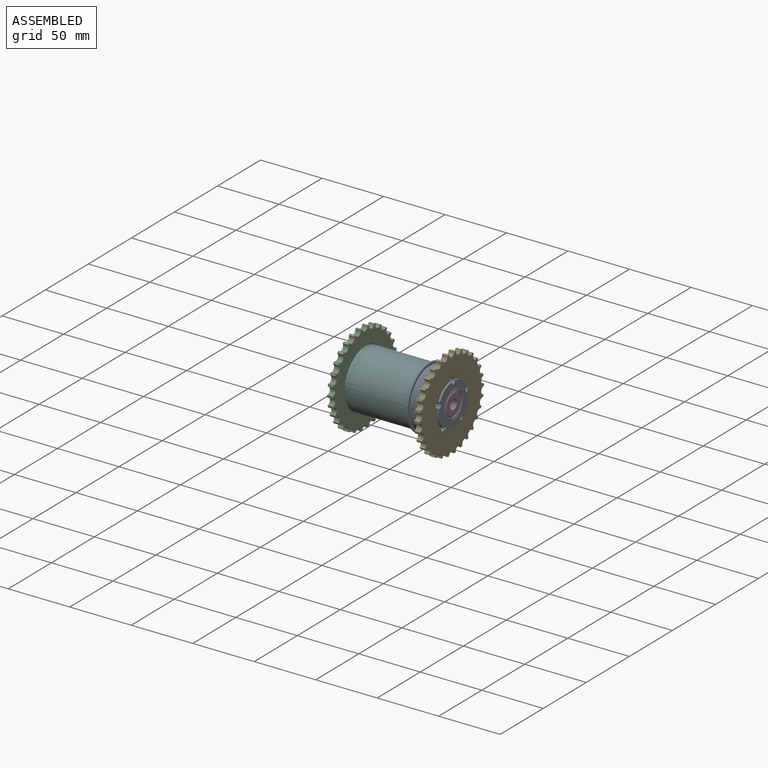
[diagram: assembled view]
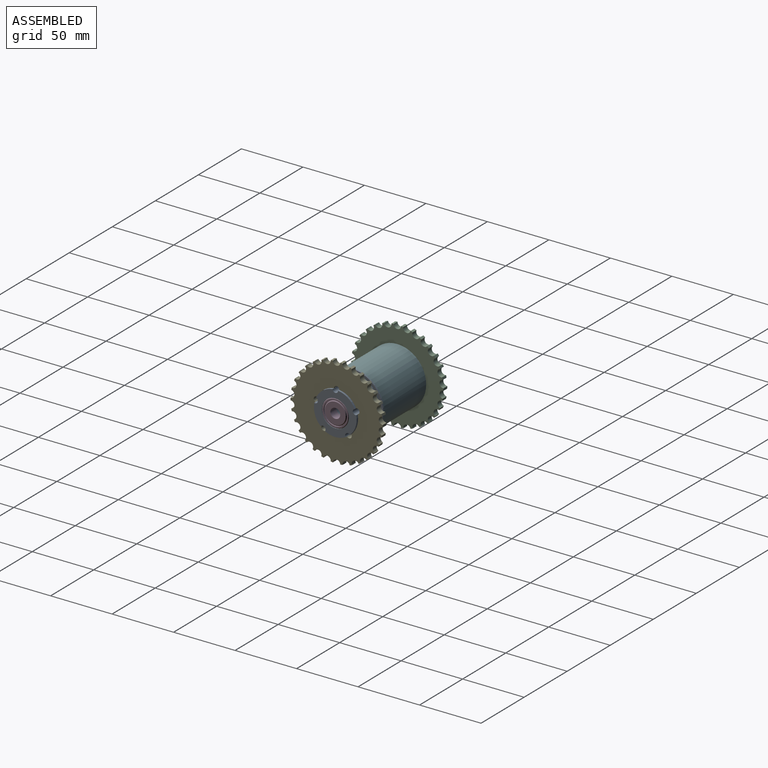
[diagram: assembled view, second angle]
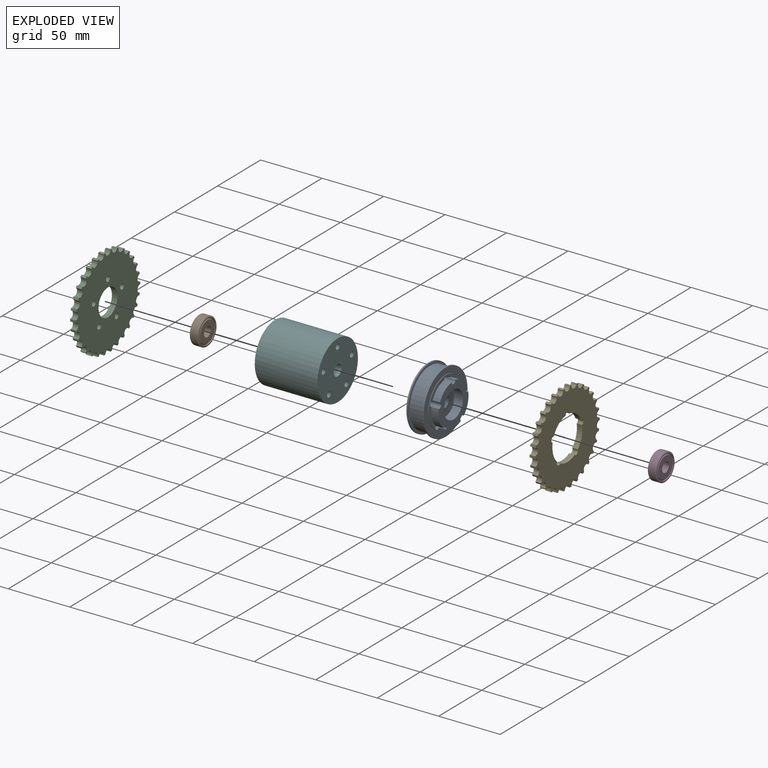
[diagram: exploded view]
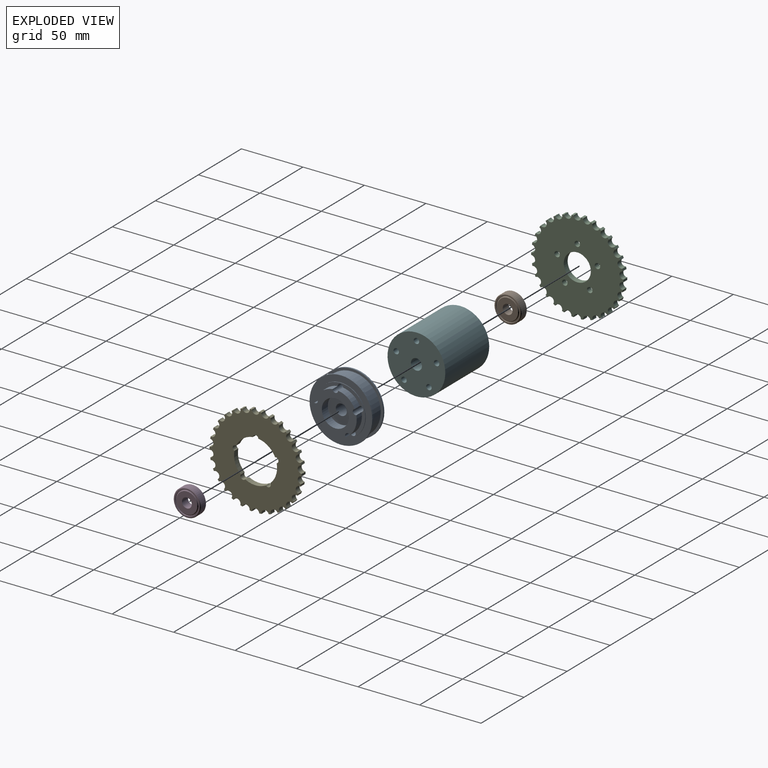
[diagram: exploded view, second angle]
ASSEMBLY  parts=6 mates=5
PART A: 25 faces, bbox 21x51x51 mm
  f0: cylinder r=17.4mm len=13.54mm, axis (-1,0,0), area 104.7mm2, adj f7,f9,f20,f24
  f1: cylinder r=17.4mm len=15.91mm, axis (-1,0,0), area 104.7mm2, adj f7,f9,f23,f24
  f2: cylinder r=17.4mm len=16.73mm, axis (-1,0,0), area 104.7mm2, adj f7,f9,f22,f23
  f3: cylinder r=17.4mm len=15.91mm, axis (-1,0,0), area 104.7mm2, adj f7,f9,f21,f22
  f4: cylinder r=17.4mm len=13.54mm, axis (-1,0,0), area 104.7mm2, adj f7,f9,f20,f21
  f5: plane 40.34x40.34mm, normal (-1,0,0), area 1138.4mm2, adj f13,f18,f20,f21,f22,f23,f24
  f6: cylinder r=25.5mm len=51mm, axis (-1,0,0), area 200.3mm2, adj f12,f19
  f7: plane 40.34x40.34mm, normal (1,0,0), area 291.2mm2, adj f0,f1,f2,f3,f4,f16,f20,f21
  f8: cylinder r=25.5mm len=51mm, axis (-1,0,0), area 200.3mm2, adj f10,f17
  f9: plane 34.8x34.66mm, normal (1,0,0), area 530.7mm2, adj f0,f1,f2,f3,f4,f15,f20,f21
  f10: plane 51x51mm, normal (-1,0,0), area 307.9mm2, adj f8,f11
  f11: cylinder r=23.5mm len=47mm, axis (-1,0,0), area 1698mm2, adj f10,f12
  f12: plane 51x51mm, normal (1,0,0), area 307.9mm2, adj f6,f11
  f13: cylinder r=4.5mm len=14mm, axis (-1,0,0), area 395.8mm2, adj f5,f14
  f14: plane 22x22mm, normal (1,0,0), area 316.5mm2, adj f13,f15
  f15: cylinder r=11mm len=22mm, axis (-1,0,0), area 483.8mm2, adj f9,f14
  f16: cylinder r=20.17mm len=40.34mm, axis (1,0,0), area 63.4mm2, adj f7,f17
  f17: plane 51x51mm, normal (1,0,0), area 764.7mm2, adj f8,f16
  f18: cylinder r=20.17mm len=40.34mm, axis (-1,0,0), area 63.4mm2, adj f5,f19
  f19: plane 51x51mm, normal (-1,0,0), area 764.7mm2, adj f6,f18
  f20: cylinder r=2.2mm len=21mm, axis (-1,0,0), area 248.9mm2, adj f0,f4,f5,f7,f9
  f21: cylinder r=2.2mm len=21mm, axis (-1,0,0), area 248.9mm2, adj f3,f4,f5,f7,f9
  f22: cylinder r=2.2mm len=21mm, axis (-1,0,0), area 248.9mm2, adj f2,f3,f5,f7,f9
  f23: cylinder r=2.2mm len=21mm, axis (-1,0,0), area 248.9mm2, adj f1,f2,f5,f7,f9
  f24: cylinder r=2.2mm len=21mm, axis (-1,0,0), area 248.9mm2, adj f0,f1,f5,f7,f9
PART B: 16 faces, bbox 22x22x7 mm
  f0: cone r=8.5mm half-angle=45deg, axis (0,0,1), area 38.9mm2, adj f1,f15
  f1: plane 17x17mm, normal (0,0,-1), area 176.7mm2, adj f0,f2
  f2: cylinder r=4mm len=8mm, axis (0,0,-1), area 175.9mm2, adj f1,f3
  f3: plane 17x17mm, normal (0,0,1), area 176.7mm2, adj f2,f4
  f4: cone r=8.5mm half-angle=45deg, axis (0,0,-1), area 38.9mm2, adj f3,f5
  f5: cylinder r=9mm len=18mm, axis (0,0,-1), area 28.3mm2, adj f4,f6
  f6: plane 19x19mm, normal (0,0,1), area 29.1mm2, adj f5,f7
  f7: cylinder r=9.5mm len=19mm, axis (0,0,-1), area 59.7mm2, adj f6,f8
  f8: plane 21x21mm, normal (0,0,1), area 62.8mm2, adj f7,f9
  f9: cone r=10.5mm half-angle=45deg, axis (0,0,-1), area 47.8mm2, adj f8,f10
  f10: cylinder r=11mm len=22mm, axis (0,0,-1), area 414.7mm2, adj f9,f11
  f11: cone r=10.5mm half-angle=45deg, axis (0,0,1), area 47.8mm2, adj f10,f12
  f12: plane 21x21mm, normal (0,0,-1), area 62.8mm2, adj f11,f13
  f13: cylinder r=9.5mm len=19mm, axis (0,0,-1), area 59.7mm2, adj f12,f14
  f14: plane 19x19mm, normal (0,0,-1), area 29.1mm2, adj f13,f15
  f15: cylinder r=9mm len=18mm, axis (0,0,-1), area 28.3mm2, adj f0,f14
PART C: 68 faces, bbox 4.5x75x74.8 mm
  f0: plane 75x74.76mm, normal (-1,0,0), area 3544.8mm2, adj f1,f2,f3,f4,f5,f6,f7,f8
  f1: cylinder r=37.5mm len=4.5mm, axis (-1,0,0), area 8.3mm2, adj f0,f31,f38,f67
  f2: cylinder r=37.5mm len=4.5mm, axis (-1,0,0), area 8.3mm2, adj f0,f31,f66,f67
  f3: cylinder r=37.5mm len=4.5mm, axis (-1,0,0), area 8.3mm2, adj f0,f31,f65,f66
  f4: cylinder r=37.5mm len=4.5mm, axis (-1,0,0), area 8.3mm2, adj f0,f31,f64,f65
  f5: cylinder r=37.5mm len=4.5mm, axis (-1,0,0), area 8.3mm2, adj f0,f31,f63,f64
  f6: cylinder r=37.5mm len=4.5mm, axis (-1,0,0), area 8.3mm2, adj f0,f31,f62,f63
  f7: cylinder r=37.5mm len=4.5mm, axis (-1,0,0), area 8.3mm2, adj f0,f31,f61,f62
  f8: cylinder r=37.5mm len=4.5mm, axis (-1,0,0), area 8.3mm2, adj f0,f31,f60,f61
  f9: cylinder r=37.5mm len=4.5mm, axis (-1,0,0), area 8.3mm2, adj f0,f31,f59,f60
  f10: cylinder r=37.5mm len=4.5mm, axis (-1,0,0), area 8.3mm2, adj f0,f31,f58,f59
  f11: cylinder r=37.5mm len=4.5mm, axis (-1,0,0), area 8.3mm2, adj f0,f31,f57,f58
  f12: cylinder r=37.5mm len=4.5mm, axis (-1,0,0), area 8.3mm2, adj f0,f31,f56,f57
  f13: cylinder r=37.5mm len=4.5mm, axis (-1,0,0), area 8.3mm2, adj f0,f31,f55,f56
  f14: cylinder r=37.5mm len=4.5mm, axis (-1,0,0), area 8.3mm2, adj f0,f31,f54,f55
  f15: cylinder r=37.5mm len=4.5mm, axis (-1,0,0), area 8.3mm2, adj f0,f31,f53,f54
  f16: cylinder r=37.5mm len=4.5mm, axis (-1,0,0), area 8.3mm2, adj f0,f31,f52,f53
  f17: cylinder r=37.5mm len=4.5mm, axis (-1,0,0), area 8.3mm2, adj f0,f31,f51,f52
  f18: cylinder r=37.5mm len=4.5mm, axis (-1,0,0), area 8.3mm2, adj f0,f31,f50,f51
  f19: cylinder r=37.5mm len=4.5mm, axis (-1,0,0), area 8.3mm2, adj f0,f31,f49,f50
  f20: cylinder r=37.5mm len=4.5mm, axis (-1,0,0), area 8.3mm2, adj f0,f31,f48,f49
  f21: cylinder r=37.5mm len=4.5mm, axis (-1,0,0), area 8.3mm2, adj f0,f31,f47,f48
  f22: cylinder r=37.5mm len=4.5mm, axis (-1,0,0), area 8.3mm2, adj f0,f31,f46,f47
  f23: cylinder r=37.5mm len=4.5mm, axis (-1,0,0), area 8.3mm2, adj f0,f31,f45,f46
  f24: cylinder r=37.5mm len=4.5mm, axis (-1,0,0), area 8.3mm2, adj f0,f31,f44,f45
  f25: cylinder r=37.5mm len=4.5mm, axis (-1,0,0), area 8.3mm2, adj f0,f31,f43,f44
  f26: cylinder r=37.5mm len=4.5mm, axis (-1,0,0), area 8.3mm2, adj f0,f31,f42,f43
  f27: cylinder r=37.5mm len=4.5mm, axis (-1,0,0), area 8.3mm2, adj f0,f31,f41,f42
  f28: cylinder r=37.5mm len=4.5mm, axis (-1,0,0), area 8.3mm2, adj f0,f31,f40,f41
  f29: cylinder r=37.5mm len=4.5mm, axis (-1,0,0), area 8.3mm2, adj f0,f31,f39,f40
  f30: cylinder r=37.5mm len=4.5mm, axis (-1,0,0), area 8.3mm2, adj f0,f31,f38,f39
  f31: plane 75x74.76mm, normal (1,0,0), area 3544.8mm2, adj f1,f2,f3,f4,f5,f6,f7,f8
  f32: cylinder r=11mm len=22mm, axis (-1,0,0), area 311mm2, adj f0,f31
  f33: cylinder r=2.2mm len=4.5mm, axis (-1,0,0), area 62.2mm2, adj f0,f31
  f34: cylinder r=2.2mm len=4.5mm, axis (-1,0,0), area 62.2mm2, adj f0,f31
  f35: cylinder r=2.2mm len=4.5mm, axis (-1,0,0), area 62.2mm2, adj f0,f31
  f36: cylinder r=2.2mm len=4.5mm, axis (-1,0,0), area 62.2mm2, adj f0,f31
  f37: cylinder r=2.2mm len=4.5mm, axis (-1,0,0), area 62.2mm2, adj f0,f31
  f38: cylinder r=3mm len=6mm, axis (-1,0,0), area 41.3mm2, adj f0,f1,f30,f31
  f39: cylinder r=3mm len=5.91mm, axis (-1,0,0), area 41.3mm2, adj f0,f29,f30,f31
  f40: cylinder r=3mm len=5.69mm, axis (-1,0,0), area 41.3mm2, adj f0,f28,f29,f31
  f41: cylinder r=3mm len=5.35mm, axis (-1,0,0), area 41.3mm2, adj f0,f27,f28,f31
  f42: cylinder r=3mm len=5.15mm, axis (-1,0,0), area 41.3mm2, adj f0,f26,f27,f31
  f43: cylinder r=3mm len=5.54mm, axis (-1,0,0), area 41.3mm2, adj f0,f25,f26,f31
  f44: cylinder r=3mm len=5.81mm, axis (-1,0,0), area 41.3mm2, adj f0,f24,f25,f31
  f45: cylinder r=3mm len=5.97mm, axis (-1,0,0), area 41.3mm2, adj f0,f23,f24,f31
  f46: cylinder r=3mm len=5.97mm, axis (-1,0,0), area 41.3mm2, adj f0,f22,f23,f31
  f47: cylinder r=3mm len=5.81mm, axis (-1,0,0), area 41.3mm2, adj f0,f21,f22,f31
  f48: cylinder r=3mm len=5.54mm, axis (-1,0,0), area 41.3mm2, adj f0,f20,f21,f31
  f49: cylinder r=3mm len=5.15mm, axis (-1,0,0), area 41.3mm2, adj f0,f19,f20,f31
  f50: cylinder r=3mm len=5.35mm, axis (-1,0,0), area 41.3mm2, adj f0,f18,f19,f31
  f51: cylinder r=3mm len=5.69mm, axis (-1,0,0), area 41.3mm2, adj f0,f17,f18,f31
  f52: cylinder r=3mm len=5.91mm, axis (-1,0,0), area 41.3mm2, adj f0,f16,f17,f31
  f53: cylinder r=3mm len=6mm, axis (-1,0,0), area 41.3mm2, adj f0,f15,f16,f31
  f54: cylinder r=3mm len=5.91mm, axis (-1,0,0), area 41.3mm2, adj f0,f14,f15,f31
  f55: cylinder r=3mm len=5.69mm, axis (-1,0,0), area 41.3mm2, adj f0,f13,f14,f31
  f56: cylinder r=3mm len=5.35mm, axis (-1,0,0), area 41.3mm2, adj f0,f12,f13,f31
  f57: cylinder r=3mm len=5.15mm, axis (-1,0,0), area 41.3mm2, adj f0,f11,f12,f31
  f58: cylinder r=3mm len=5.54mm, axis (-1,0,0), area 41.3mm2, adj f0,f10,f11,f31
  f59: cylinder r=3mm len=5.81mm, axis (-1,0,0), area 41.3mm2, adj f0,f9,f10,f31
  f60: cylinder r=3mm len=5.97mm, axis (-1,0,0), area 41.3mm2, adj f0,f8,f9,f31
  f61: cylinder r=3mm len=5.97mm, axis (-1,0,0), area 41.3mm2, adj f0,f7,f8,f31
  f62: cylinder r=3mm len=5.81mm, axis (-1,0,0), area 41.3mm2, adj f0,f6,f7,f31
  f63: cylinder r=3mm len=5.54mm, axis (-1,0,0), area 41.3mm2, adj f0,f5,f6,f31
  f64: cylinder r=3mm len=5.15mm, axis (-1,0,0), area 41.3mm2, adj f0,f4,f5,f31
  f65: cylinder r=3mm len=5.35mm, axis (-1,0,0), area 41.3mm2, adj f0,f3,f4,f31
  f66: cylinder r=3mm len=5.69mm, axis (-1,0,0), area 41.3mm2, adj f0,f2,f3,f31
  f67: cylinder r=3mm len=5.91mm, axis (-1,0,0), area 41.3mm2, adj f0,f1,f2,f31
PART D: same geometry as B
PART E: 72 faces, bbox 4.5x75x74.8 mm
  f0: cylinder r=37.5mm len=4.5mm, axis (-1,0,0), area 8.3mm2, adj f35,f36,f42,f71
  f1: cylinder r=37.5mm len=4.5mm, axis (-1,0,0), area 8.3mm2, adj f35,f36,f70,f71
  f2: cylinder r=37.5mm len=4.5mm, axis (-1,0,0), area 8.3mm2, adj f35,f36,f69,f70
  f3: cylinder r=37.5mm len=4.5mm, axis (-1,0,0), area 8.3mm2, adj f35,f36,f68,f69
  f4: cylinder r=37.5mm len=4.5mm, axis (-1,0,0), area 8.3mm2, adj f35,f36,f67,f68
  f5: cylinder r=37.5mm len=4.5mm, axis (-1,0,0), area 8.3mm2, adj f35,f36,f66,f67
  f6: cylinder r=37.5mm len=4.5mm, axis (-1,0,0), area 8.3mm2, adj f35,f36,f65,f66
  f7: cylinder r=37.5mm len=4.5mm, axis (-1,0,0), area 8.3mm2, adj f35,f36,f64,f65
  f8: cylinder r=37.5mm len=4.5mm, axis (-1,0,0), area 8.3mm2, adj f35,f36,f63,f64
  f9: cylinder r=37.5mm len=4.5mm, axis (-1,0,0), area 8.3mm2, adj f35,f36,f62,f63
  f10: cylinder r=37.5mm len=4.5mm, axis (-1,0,0), area 8.3mm2, adj f35,f36,f61,f62
  f11: cylinder r=37.5mm len=4.5mm, axis (-1,0,0), area 8.3mm2, adj f35,f36,f60,f61
  f12: cylinder r=37.5mm len=4.5mm, axis (-1,0,0), area 8.3mm2, adj f35,f36,f59,f60
  f13: cylinder r=37.5mm len=4.5mm, axis (-1,0,0), area 8.3mm2, adj f35,f36,f58,f59
  f14: cylinder r=37.5mm len=4.5mm, axis (-1,0,0), area 8.3mm2, adj f35,f36,f57,f58
  f15: cylinder r=37.5mm len=4.5mm, axis (-1,0,0), area 8.3mm2, adj f35,f36,f56,f57
  f16: cylinder r=37.5mm len=4.5mm, axis (-1,0,0), area 8.3mm2, adj f35,f36,f55,f56
  f17: cylinder r=37.5mm len=4.5mm, axis (-1,0,0), area 8.3mm2, adj f35,f36,f54,f55
  f18: cylinder r=37.5mm len=4.5mm, axis (-1,0,0), area 8.3mm2, adj f35,f36,f53,f54
  f19: cylinder r=37.5mm len=4.5mm, axis (-1,0,0), area 8.3mm2, adj f35,f36,f52,f53
  f20: cylinder r=37.5mm len=4.5mm, axis (-1,0,0), area 8.3mm2, adj f35,f36,f51,f52
  f21: cylinder r=37.5mm len=4.5mm, axis (-1,0,0), area 8.3mm2, adj f35,f36,f50,f51
  f22: cylinder r=37.5mm len=4.5mm, axis (-1,0,0), area 8.3mm2, adj f35,f36,f49,f50
  f23: cylinder r=37.5mm len=4.5mm, axis (-1,0,0), area 8.3mm2, adj f35,f36,f48,f49
  f24: cylinder r=37.5mm len=4.5mm, axis (-1,0,0), area 8.3mm2, adj f35,f36,f47,f48
  f25: cylinder r=37.5mm len=4.5mm, axis (-1,0,0), area 8.3mm2, adj f35,f36,f46,f47
  f26: cylinder r=37.5mm len=4.5mm, axis (-1,0,0), area 8.3mm2, adj f35,f36,f45,f46
  f27: cylinder r=37.5mm len=4.5mm, axis (-1,0,0), area 8.3mm2, adj f35,f36,f44,f45
  f28: cylinder r=37.5mm len=4.5mm, axis (-1,0,0), area 8.3mm2, adj f35,f36,f43,f44
  f29: cylinder r=17.5mm len=13.64mm, axis (-1,0,0), area 79.1mm2, adj f35,f36,f37,f41
  f30: cylinder r=17.5mm len=16.03mm, axis (-1,0,0), area 79.1mm2, adj f35,f36,f40,f41
  f31: cylinder r=17.5mm len=16.85mm, axis (-1,0,0), area 79.1mm2, adj f35,f36,f39,f40
  f32: cylinder r=17.5mm len=16.03mm, axis (-1,0,0), area 79.1mm2, adj f35,f36,f38,f39
  f33: cylinder r=17.5mm len=13.64mm, axis (-1,0,0), area 79.1mm2, adj f35,f36,f37,f38
  f34: cylinder r=37.5mm len=4.5mm, axis (-1,0,0), area 8.3mm2, adj f35,f36,f42,f43
  f35: plane 75x74.76mm, normal (1,0,0), area 3005.3mm2, adj f0,f1,f2,f3,f4,f5,f6,f7
  f36: plane 75x74.76mm, normal (-1,0,0), area 3005.3mm2, adj f0,f1,f2,f3,f4,f5,f6,f7
  f37: cylinder r=2.2mm len=4.5mm, axis (-1,0,0), area 30.1mm2, adj f29,f33,f35,f36
  f38: cylinder r=2.2mm len=4.5mm, axis (-1,0,0), area 30.1mm2, adj f32,f33,f35,f36
  f39: cylinder r=2.2mm len=4.5mm, axis (-1,0,0), area 30.1mm2, adj f31,f32,f35,f36
  f40: cylinder r=2.2mm len=4.5mm, axis (-1,0,0), area 30.1mm2, adj f30,f31,f35,f36
  f41: cylinder r=2.2mm len=4.5mm, axis (-1,0,0), area 30.1mm2, adj f29,f30,f35,f36
  f42: cylinder r=3mm len=6mm, axis (-1,0,0), area 41.3mm2, adj f0,f34,f35,f36
  f43: cylinder r=3mm len=5.91mm, axis (-1,0,0), area 41.3mm2, adj f28,f34,f35,f36
  f44: cylinder r=3mm len=5.69mm, axis (-1,0,0), area 41.3mm2, adj f27,f28,f35,f36
  f45: cylinder r=3mm len=5.35mm, axis (-1,0,0), area 41.3mm2, adj f26,f27,f35,f36
  f46: cylinder r=3mm len=5.15mm, axis (-1,0,0), area 41.3mm2, adj f25,f26,f35,f36
  f47: cylinder r=3mm len=5.54mm, axis (-1,0,0), area 41.3mm2, adj f24,f25,f35,f36
  f48: cylinder r=3mm len=5.81mm, axis (-1,0,0), area 41.3mm2, adj f23,f24,f35,f36
  f49: cylinder r=3mm len=5.97mm, axis (-1,0,0), area 41.3mm2, adj f22,f23,f35,f36
  f50: cylinder r=3mm len=5.97mm, axis (-1,0,0), area 41.3mm2, adj f21,f22,f35,f36
  f51: cylinder r=3mm len=5.81mm, axis (-1,0,0), area 41.3mm2, adj f20,f21,f35,f36
  f52: cylinder r=3mm len=5.54mm, axis (-1,0,0), area 41.3mm2, adj f19,f20,f35,f36
  f53: cylinder r=3mm len=5.15mm, axis (-1,0,0), area 41.3mm2, adj f18,f19,f35,f36
  f54: cylinder r=3mm len=5.35mm, axis (-1,0,0), area 41.3mm2, adj f17,f18,f35,f36
  f55: cylinder r=3mm len=5.69mm, axis (-1,0,0), area 41.3mm2, adj f16,f17,f35,f36
  f56: cylinder r=3mm len=5.91mm, axis (-1,0,0), area 41.3mm2, adj f15,f16,f35,f36
  f57: cylinder r=3mm len=6mm, axis (-1,0,0), area 41.3mm2, adj f14,f15,f35,f36
  f58: cylinder r=3mm len=5.91mm, axis (-1,0,0), area 41.3mm2, adj f13,f14,f35,f36
  f59: cylinder r=3mm len=5.69mm, axis (-1,0,0), area 41.3mm2, adj f12,f13,f35,f36
  f60: cylinder r=3mm len=5.35mm, axis (-1,0,0), area 41.3mm2, adj f11,f12,f35,f36
  f61: cylinder r=3mm len=5.15mm, axis (-1,0,0), area 41.3mm2, adj f10,f11,f35,f36
  f62: cylinder r=3mm len=5.54mm, axis (-1,0,0), area 41.3mm2, adj f9,f10,f35,f36
  f63: cylinder r=3mm len=5.81mm, axis (-1,0,0), area 41.3mm2, adj f8,f9,f35,f36
  f64: cylinder r=3mm len=5.97mm, axis (-1,0,0), area 41.3mm2, adj f7,f8,f35,f36
  f65: cylinder r=3mm len=5.97mm, axis (-1,0,0), area 41.3mm2, adj f6,f7,f35,f36
  f66: cylinder r=3mm len=5.81mm, axis (-1,0,0), area 41.3mm2, adj f5,f6,f35,f36
  f67: cylinder r=3mm len=5.54mm, axis (-1,0,0), area 41.3mm2, adj f4,f5,f35,f36
  f68: cylinder r=3mm len=5.15mm, axis (-1,0,0), area 41.3mm2, adj f3,f4,f35,f36
  f69: cylinder r=3mm len=5.35mm, axis (-1,0,0), area 41.3mm2, adj f2,f3,f35,f36
  f70: cylinder r=3mm len=5.69mm, axis (-1,0,0), area 41.3mm2, adj f1,f2,f35,f36
  f71: cylinder r=3mm len=5.91mm, axis (-1,0,0), area 41.3mm2, adj f0,f1,f35,f36
PART F: 11 faces, bbox 51x47x47 mm
  f0: cylinder r=4.5mm len=48.5mm, axis (-1,0,0), area 1371.3mm2, adj f1,f5
  f1: plane 47x47mm, normal (1,0,0), area 1595.3mm2, adj f0,f3,f6,f7,f8,f9,f10
  f2: plane 47x47mm, normal (-1,0,0), area 1278.8mm2, adj f3,f4,f6,f7,f8,f9,f10
  f3: cylinder r=23.5mm len=51mm, axis (-1,0,0), area 7530.4mm2, adj f1,f2
  f4: cylinder r=11mm len=22mm, axis (-1,0,0), area 172.8mm2, adj f2,f5
  f5: plane 22x22mm, normal (-1,0,0), area 316.5mm2, adj f0,f4
  f6: cylinder r=2.2mm len=51mm, axis (-1,0,0), area 705mm2, adj f1,f2
  f7: cylinder r=2.2mm len=51mm, axis (-1,0,0), area 705mm2, adj f1,f2
  f8: cylinder r=2.2mm len=51mm, axis (-1,0,0), area 705mm2, adj f1,f2
  f9: cylinder r=2.2mm len=51mm, axis (-1,0,0), area 705mm2, adj f1,f2
  f10: cylinder r=2.2mm len=51mm, axis (-1,0,0), area 705mm2, adj f1,f2
PLACE A t=(11.33,38.84,-49.45)mm
PLACE B rot(axis=(0.71,0,0.71),180deg) t=(-48.17,38.84,-49.45)mm
PLACE C t=(11.33,38.84,-49.45)mm
PLACE D rot(axis=(0.71,0,0.71),180deg) t=(21.33,38.84,-49.45)mm
PLACE E t=(11.33,38.84,-49.45)mm
PLACE F t=(11.33,38.84,-49.45)mm
MATE fastened B.f0 <-> F.f0  axis (1,0,0) through (-44.67,38.84,-49.45)mm
MATE fastened A.f0 <-> E.f0  axis (1,0,0) through (18.83,38.84,-49.45)mm
MATE fastened F.f7 <-> C.f34  axis (-1,0,0) through (-47.17,55.25,-44.11)mm
MATE fastened F.f7 <-> A.f21  axis (1,0,0) through (3.83,55.25,-44.11)mm
MATE fastened D.f0 <-> A.f0  axis (-1,0,0) through (17.83,38.84,-49.45)mm
